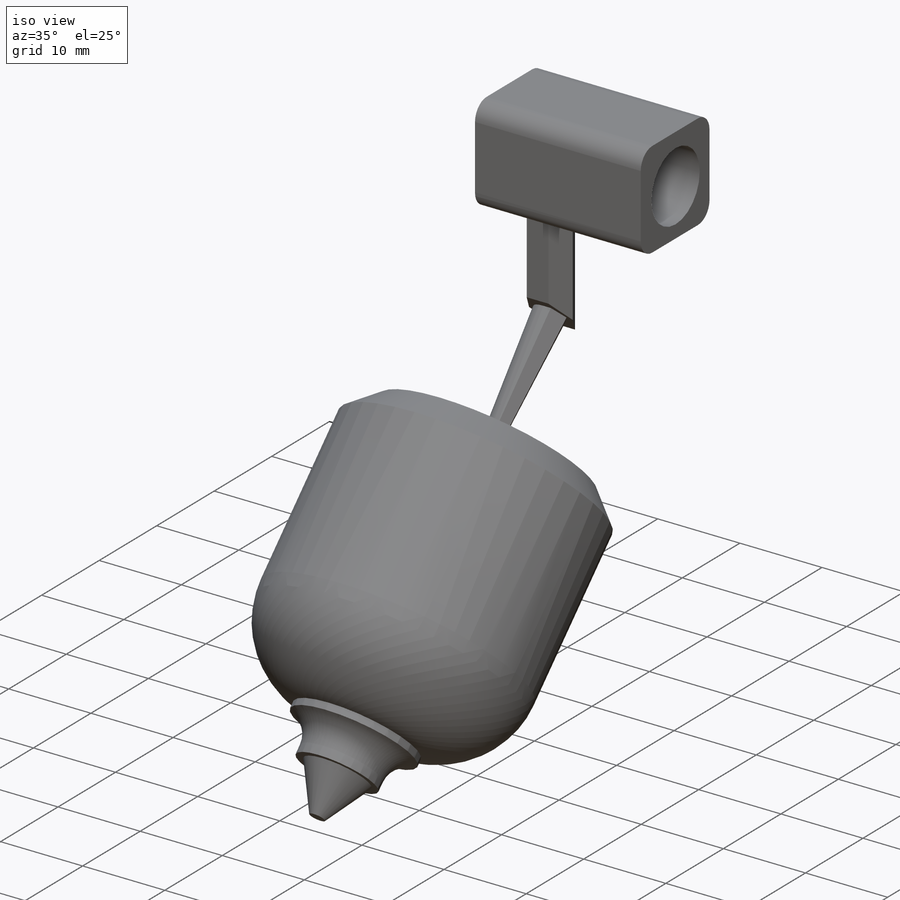
[diagram: iso view]
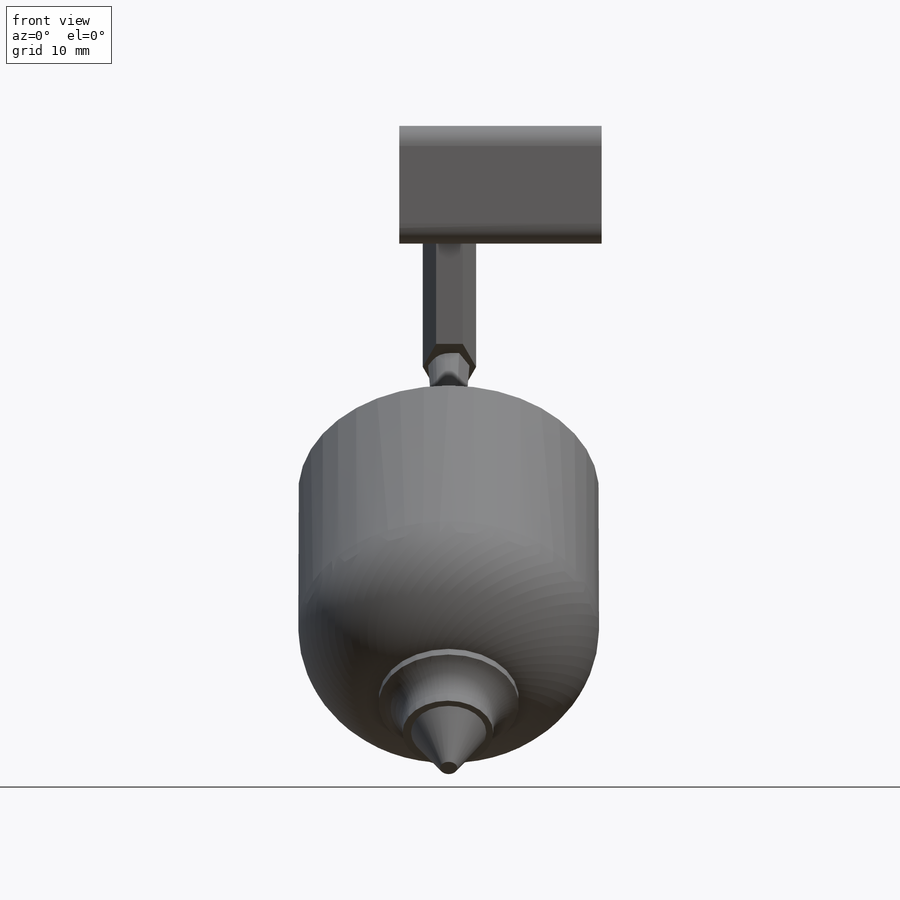
[diagram: front view]
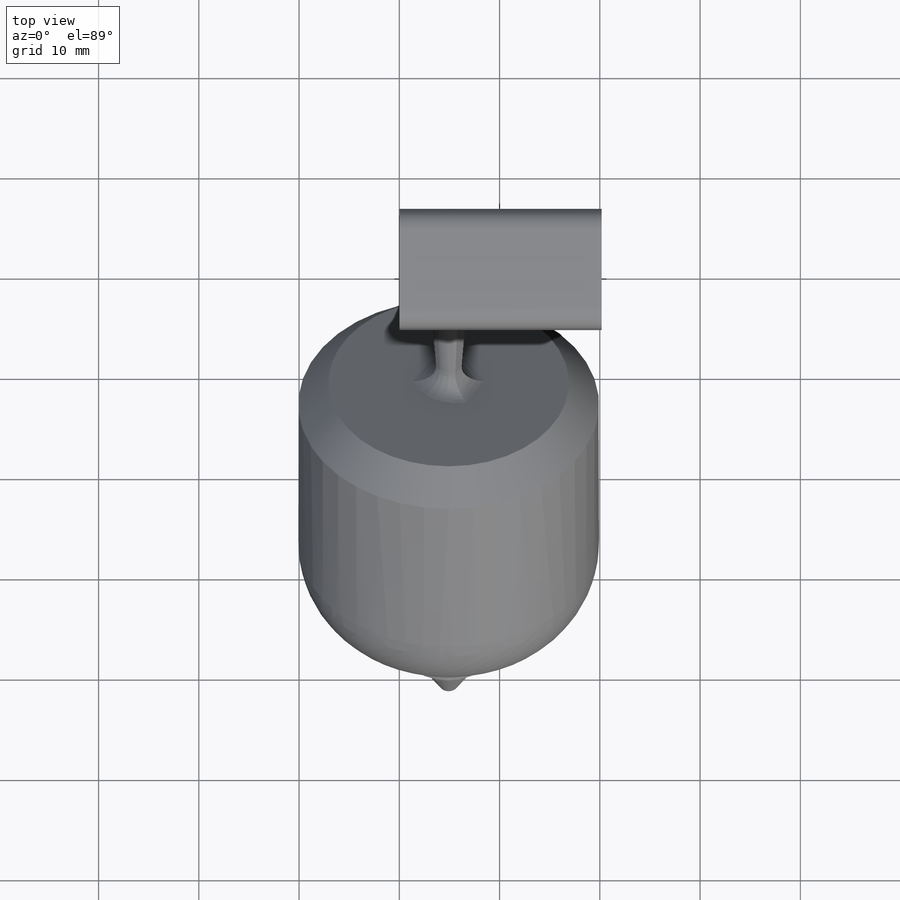
[diagram: top view]
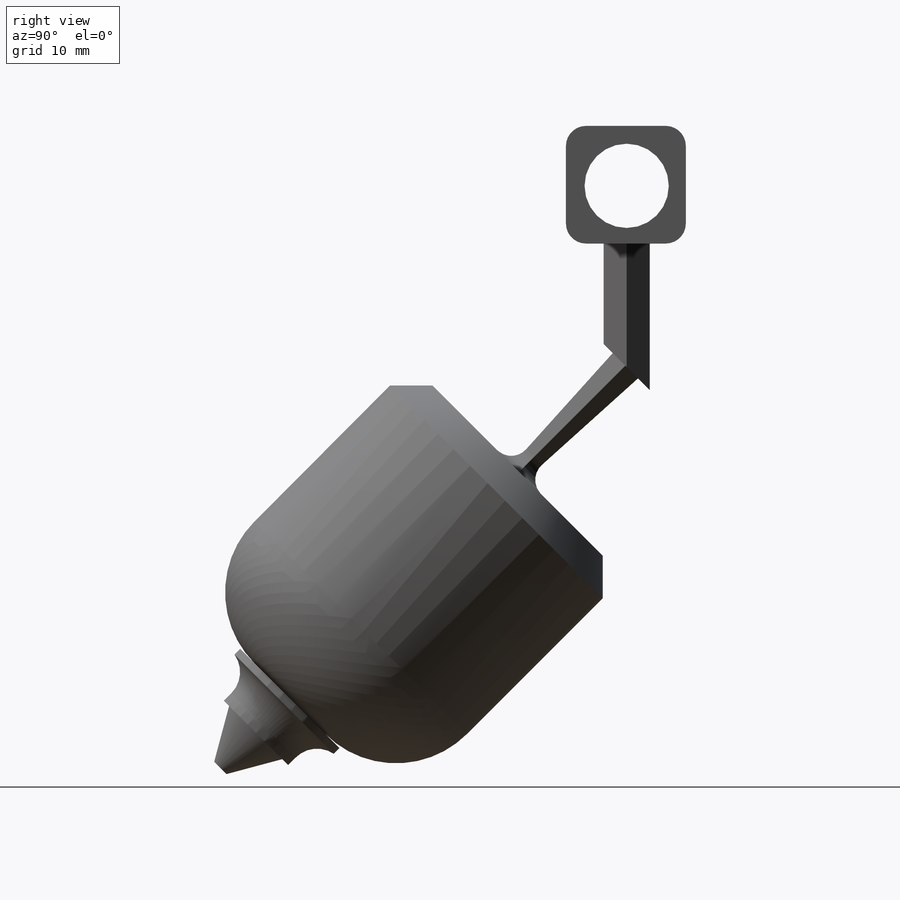
[diagram: right view]
SOLIDWORKS PART (.sldprt)
format: sldprt  version: not decoded by parser v0  size: 330,752 bytes
history: native  units: mm
features: sketch x9, extrude x8, fillet x3, chamfer x2, material x1, cut_extrude x1 (+11 scaffold rows collapsed)
feature tree (35):
  scaffold x11  (default folders/planes/origin — collapsed)
  material  "Material <not specified>"
  sketch  "Sketch1"  dims[D1=2.0mm]
  extrude  "Boss-Extrude1"  Depth=20.182065mm
  sketch  "Sketch2"  dims[D1=5.0mm]
  extrude  "Boss-Extrude2"  Depth=15mm
  chamfer  "Chamfer1"  Distance=5mm Angle=45deg
  sketch  "Sketch3"
  extrude  "Boss-Extrude3"  Depth=15mm
  sketch  "Sketch5"  dims[D1=~13.821588mm]
  extrude  "Boss-Extrude4"  Depth=21mm
  fillet  "Fillet7"  Radius=2mm
  chamfer  "Chamfer2"  Distance=3mm Angle=45deg
  sketch  "Sketch6"  dims[D1=3.0mm]
  cut_extrude  "Cut-Extrude1"  Depth=20mm
  sketch  "Sketch7"
  extrude  "Boss-Extrude5"  Depth=11.13932mm
  fillet  "Fillet9"  Radius=10mm
  sketch  "Sketch8"  dims[D1=2.0mm]
  extrude  "Boss-Extrude6"  Depth=0.800135mm
  sketch  "Sketch9"
  extrude  "Boss-Extrude8"  Depth=4mm
  fillet  "Fillet11"  Radius=3mm
  sketch  "Sketch10"
  extrude  "Boss-Extrude9"  Depth=5mm
decode coverage: 19 of 23 modeling features carry decoded parameters
note: ~ marks probable driven/reference dimensions
note: suppression state not decoded; provenance and decode notes live in map.json
